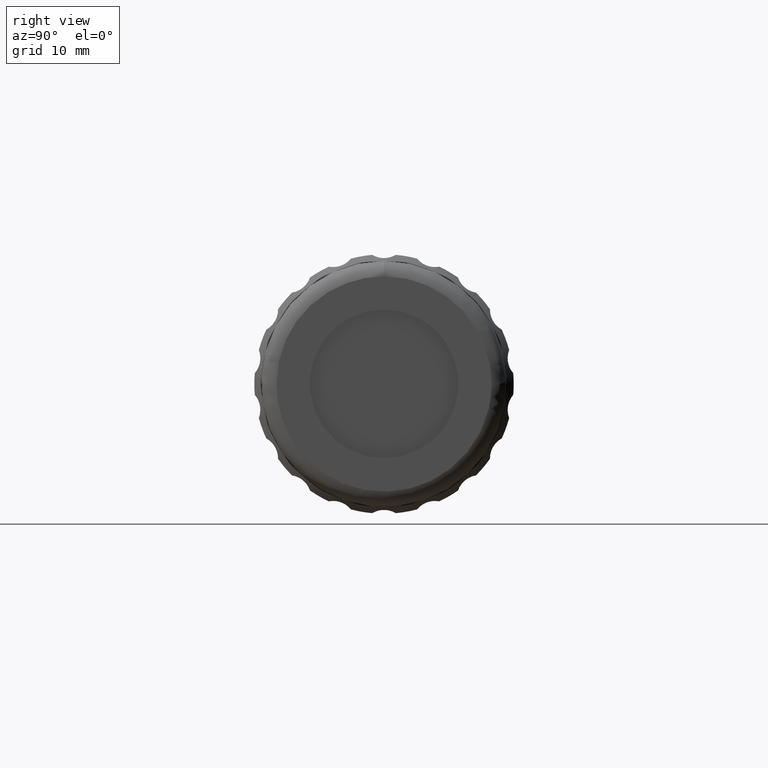
[diagram: clean part render]
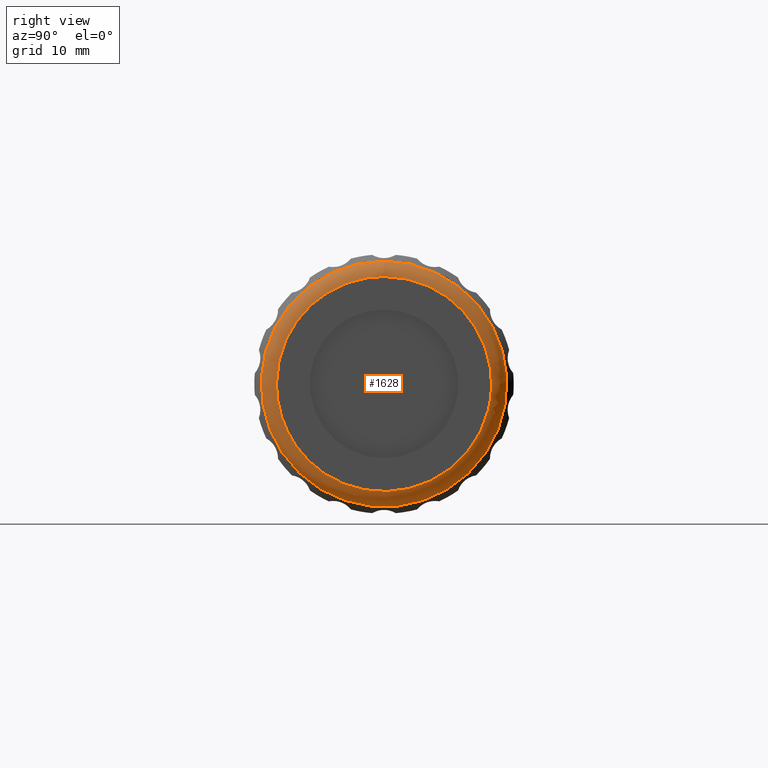
[diagram: same view with one face highlighted and labeled with its STEP entity id]
A machine part, right view. The second image highlights one B-rep face of the part: STEP entity #1628.
In plain terms, the highlighted face is a freeform B-spline surface patch.
Its self-contained STEP definition (entity closure, byte-faithful):
#17 = CARTESIAN_POINT ( 'NONE',  ( 73.44685803487880094, 60.12096199999999868, 0.000000000000000000 ) ) ;
#39 = DIRECTION ( 'NONE',  ( -1.000000000000000000, 0.000000000000000000, 0.000000000000000000 ) ) ;
#84 = VERTEX_POINT ( 'NONE', #1208 ) ;
#145 = CARTESIAN_POINT ( 'NONE',  ( 73.44685803487880094, 31.92096199999999584, -1.036051192078660836E-15 ) ) ;
#155 = CARTESIAN_POINT ( 'NONE',  ( 73.44685803487880094, 60.12096199999999868, 0.000000000000000000 ) ) ;
#160 = CARTESIAN_POINT ( 'NONE',  ( 73.44685803487880094, 37.76137322946063790, 14.09999999999999964 ) ) ;
#177 = CARTESIAN_POINT ( 'NONE',  ( 71.44685803487880094, 62.12096199999999868, 0.000000000000000000 ) ) ;
#211 = AXIS2_PLACEMENT_3D ( 'NONE', #2488, #39, #2533 ) ;
#249 = CARTESIAN_POINT ( 'NONE',  ( 73.44685803487880094, 31.92096199999999584, -1.036051192078660836E-15 ) ) ;
#291 = EDGE_CURVE ( 'NONE', #1617, #301, #998, .T. ) ;
#301 = VERTEX_POINT ( 'NONE', #1821 ) ;
#423 = CARTESIAN_POINT ( 'NONE',  ( 72.61843091013260221, 29.92096199999999584, 32.20000000000000284 ) ) ;
#430 = VERTEX_POINT ( 'NONE', #1990 ) ;
#438 = CIRCLE ( 'NONE', #211, 16.10000000000000142 ) ;
#439 = CARTESIAN_POINT ( 'NONE',  ( 73.44685803487880094, 61.29253487525379995, 0.000000000000000000 ) ) ;
#464 = CARTESIAN_POINT ( 'NONE',  ( 73.44685803487880094, 31.92096199999999229, 28.20000000000000284 ) ) ;
#467 = CARTESIAN_POINT ( 'NONE',  ( 73.44685803487880094, 46.02096199999999726, 14.10000000000000142 ) ) ;
#577 = CARTESIAN_POINT ( 'NONE',  ( 73.44685803487880094, 46.02096199999999726, 14.10000000000000142 ) ) ;
#602 = FACE_OUTER_BOUND ( 'NONE', #1718, .T. ) ;
#628 = CARTESIAN_POINT ( 'NONE',  ( 73.44685803487880094, 60.12096199999999868, 28.20000000000000284 ) ) ;
#690 = CARTESIAN_POINT ( 'NONE',  ( 73.44685803487880094, 31.92096199999999584, 0.000000000000000000 ) ) ;
#711 = CARTESIAN_POINT ( 'NONE',  ( 73.44685803487880094, 54.28055077053935662, 14.09999999999999964 ) ) ;
#763 = EDGE_CURVE ( 'NONE', #84, #1617, #822, .T. ) ;
#787 =( BOUNDED_SURFACE ( )  B_SPLINE_SURFACE ( 3, 3, ( 
 ( #177, #1896, #2371, #1256, #2235, #1529, #2418 ),
 ( #1356, #1077, #2178, #1776, #423, #2246, #911 ),
 ( #896, #1300, #2674, #1556, #1285, #1751, #439 ),
 ( #17, #2193, #853, #690, #464, #628, #1094 ) ),
 .UNSPECIFIED., .F., .T., .T. ) 
 B_SPLINE_SURFACE_WITH_KNOTS ( ( 4, 4 ),
 ( 4, 3, 4 ),
 ( 0.000000000000000000, 1.000000000000000000 ),
 ( 0.000000000000000000, 0.5000000000000000000, 1.000000000000000000 ),
 .UNSPECIFIED. ) 
 GEOMETRIC_REPRESENTATION_ITEM ( )  RATIONAL_B_SPLINE_SURFACE ( (
 ( 1.000000000000000000, 0.3333333333333333148, 0.3333333333333333148, 1.000000000000000000, 0.3333333333333333148, 0.3333333333333333148, 1.000000000000000000),
 ( 0.8047378541243649375, 0.2682459513747882940, 0.2682459513747882940, 0.8047378541243649375, 0.2682459513747882940, 0.2682459513747882940, 0.8047378541243649375),
 ( 0.8047378541243649375, 0.2682459513747882940, 0.2682459513747882940, 0.8047378541243649375, 0.2682459513747882940, 0.2682459513747882940, 0.8047378541243649375),
 ( 1.000000000000000000, 0.3333333333333333148, 0.3333333333333333148, 1.000000000000000000, 0.3333333333333333148, 0.3333333333333333148, 1.000000000000000000) ) ) 
 REPRESENTATION_ITEM ( '' )  SURFACE ( )  );
#822 =( BOUNDED_CURVE ( )  B_SPLINE_CURVE ( 3, ( #145, #1517, #160, #577 ),
 .UNSPECIFIED., .F., .T. ) 
 B_SPLINE_CURVE_WITH_KNOTS ( ( 4, 4 ),
 ( 0.000000000000000000, 1.000000000000000000 ),
 .UNSPECIFIED. ) 
 CURVE ( )  GEOMETRIC_REPRESENTATION_ITEM ( )  RATIONAL_B_SPLINE_CURVE ( ( 1.000000000000000000, 0.8047378541243649375, 0.8047378541243649375, 1.000000000000000000 ) ) 
 REPRESENTATION_ITEM ( '' )  );
#853 = CARTESIAN_POINT ( 'NONE',  ( 73.44685803487880094, 31.92096199999999229, -28.20000000000000284 ) ) ;
#896 = CARTESIAN_POINT ( 'NONE',  ( 73.44685803487880094, 61.29253487525379995, 0.000000000000000000 ) ) ;
#911 = CARTESIAN_POINT ( 'NONE',  ( 72.61843091013260221, 62.12096199999999868, 0.000000000000000000 ) ) ;
#954 = ORIENTED_EDGE ( 'NONE', *, *, #763, .T. ) ;
#998 =( BOUNDED_CURVE ( )  B_SPLINE_CURVE ( 3, ( #467, #711, #1359, #1603 ),
 .UNSPECIFIED., .F., .T. ) 
 B_SPLINE_CURVE_WITH_KNOTS ( ( 4, 4 ),
 ( 0.000000000000000000, 1.000000000000000000 ),
 .UNSPECIFIED. ) 
 CURVE ( )  GEOMETRIC_REPRESENTATION_ITEM ( )  RATIONAL_B_SPLINE_CURVE ( ( 1.000000000000000000, 0.8047378541243649375, 0.8047378541243649375, 1.000000000000000000 ) ) 
 REPRESENTATION_ITEM ( '' )  );
#1019 = FACE_OUTER_BOUND ( 'NONE', #1111, .T. ) ;
#1043 = CARTESIAN_POINT ( 'NONE',  ( 73.44685803487880094, 60.12096200000000579, -28.19999999999999929 ) ) ;
#1077 = CARTESIAN_POINT ( 'NONE',  ( 72.61843091013260221, 62.12096199999999868, -32.20000000000000284 ) ) ;
#1094 = CARTESIAN_POINT ( 'NONE',  ( 73.44685803487880094, 60.12096199999999868, 0.000000000000000000 ) ) ;
#1111 = EDGE_LOOP ( 'NONE', ( #2428 ) ) ;
#1112 = CARTESIAN_POINT ( 'NONE',  ( 73.44685803487880094, 31.92096199999999584, -28.19999999999999929 ) ) ;
#1208 = CARTESIAN_POINT ( 'NONE',  ( 73.44685803487880094, 31.92096199999999584, -1.036051192078660836E-15 ) ) ;
#1256 = CARTESIAN_POINT ( 'NONE',  ( 71.44685803487880094, 29.92096199999999584, 0.000000000000000000 ) ) ;
#1285 = CARTESIAN_POINT ( 'NONE',  ( 73.44685803487880094, 30.74938912474618391, 30.54314575050763025 ) ) ;
#1300 = CARTESIAN_POINT ( 'NONE',  ( 73.44685803487880094, 61.29253487525381416, -30.54314575050762315 ) ) ;
#1356 = CARTESIAN_POINT ( 'NONE',  ( 72.61843091013260221, 62.12096199999999868, 0.000000000000000000 ) ) ;
#1359 = CARTESIAN_POINT ( 'NONE',  ( 73.44685803487880094, 60.12096199999999868, 8.259588770539359359 ) ) ;
#1461 = CARTESIAN_POINT ( 'NONE',  ( 73.44685803487880094, 46.02096199999999726, 14.10000000000000142 ) ) ;
#1517 = CARTESIAN_POINT ( 'NONE',  ( 73.44685803487880094, 31.92096199999999584, 8.259588770539357583 ) ) ;
#1524 = ORIENTED_EDGE ( 'NONE', *, *, #291, .T. ) ;
#1529 = CARTESIAN_POINT ( 'NONE',  ( 71.44685803487880094, 62.12096200000000579, 32.20000000000000284 ) ) ;
#1556 = CARTESIAN_POINT ( 'NONE',  ( 73.44685803487880094, 30.74938912474618391, 0.000000000000000000 ) ) ;
#1603 = CARTESIAN_POINT ( 'NONE',  ( 73.44685803487880094, 60.12096199999999868, 0.000000000000000000 ) ) ;
#1617 = VERTEX_POINT ( 'NONE', #1461 ) ;
#1628 = ADVANCED_FACE ( 'NONE', ( #602, #1019 ), #787, .T. ) ;
#1718 = EDGE_LOOP ( 'NONE', ( #1524, #2229, #954 ) ) ;
#1751 = CARTESIAN_POINT ( 'NONE',  ( 73.44685803487880094, 61.29253487525381416, 30.54314575050762315 ) ) ;
#1776 = CARTESIAN_POINT ( 'NONE',  ( 72.61843091013260221, 29.92096199999999939, 0.000000000000000000 ) ) ;
#1821 = CARTESIAN_POINT ( 'NONE',  ( 73.44685803487880094, 60.12096199999999868, 0.000000000000000000 ) ) ;
#1896 = CARTESIAN_POINT ( 'NONE',  ( 71.44685803487880094, 62.12096200000000579, -32.20000000000000284 ) ) ;
#1990 = CARTESIAN_POINT ( 'NONE',  ( 71.44685803487880094, 46.02096199999999726, 16.10000000000000142 ) ) ;
#2178 = CARTESIAN_POINT ( 'NONE',  ( 72.61843091013260221, 29.92096199999999584, -32.20000000000000284 ) ) ;
#2193 = CARTESIAN_POINT ( 'NONE',  ( 73.44685803487880094, 60.12096199999999868, -28.20000000000000284 ) ) ;
#2229 = ORIENTED_EDGE ( 'NONE', *, *, #2860, .T. ) ;
#2233 =( BOUNDED_CURVE ( )  B_SPLINE_CURVE ( 3, ( #155, #1043, #1112, #249 ),
 .UNSPECIFIED., .F., .T. ) 
 B_SPLINE_CURVE_WITH_KNOTS ( ( 4, 4 ),
 ( 0.000000000000000000, 1.000000000000000000 ),
 .UNSPECIFIED. ) 
 CURVE ( )  GEOMETRIC_REPRESENTATION_ITEM ( )  RATIONAL_B_SPLINE_CURVE ( ( 1.000000000000000000, 0.3333333333333333703, 0.3333333333333333703, 1.000000000000000000 ) ) 
 REPRESENTATION_ITEM ( '' )  );
#2235 = CARTESIAN_POINT ( 'NONE',  ( 71.44685803487880094, 29.92096199999999584, 32.20000000000000284 ) ) ;
#2246 = CARTESIAN_POINT ( 'NONE',  ( 72.61843091013260221, 62.12096199999999868, 32.20000000000000284 ) ) ;
#2268 = EDGE_CURVE ( 'NONE', #430, #430, #438, .T. ) ;
#2371 = CARTESIAN_POINT ( 'NONE',  ( 71.44685803487880094, 29.92096199999999584, -32.20000000000000284 ) ) ;
#2418 = CARTESIAN_POINT ( 'NONE',  ( 71.44685803487880094, 62.12096199999999868, 0.000000000000000000 ) ) ;
#2428 = ORIENTED_EDGE ( 'NONE', *, *, #2268, .F. ) ;
#2488 = CARTESIAN_POINT ( 'NONE',  ( 71.44685803487880094, 46.02096199999999726, 0.000000000000000000 ) ) ;
#2533 = DIRECTION ( 'NONE',  ( 0.000000000000000000, 0.000000000000000000, 1.000000000000000000 ) ) ;
#2674 = CARTESIAN_POINT ( 'NONE',  ( 73.44685803487880094, 30.74938912474619102, -30.54314575050762315 ) ) ;
#2860 = EDGE_CURVE ( 'NONE', #301, #84, #2233, .T. ) ;